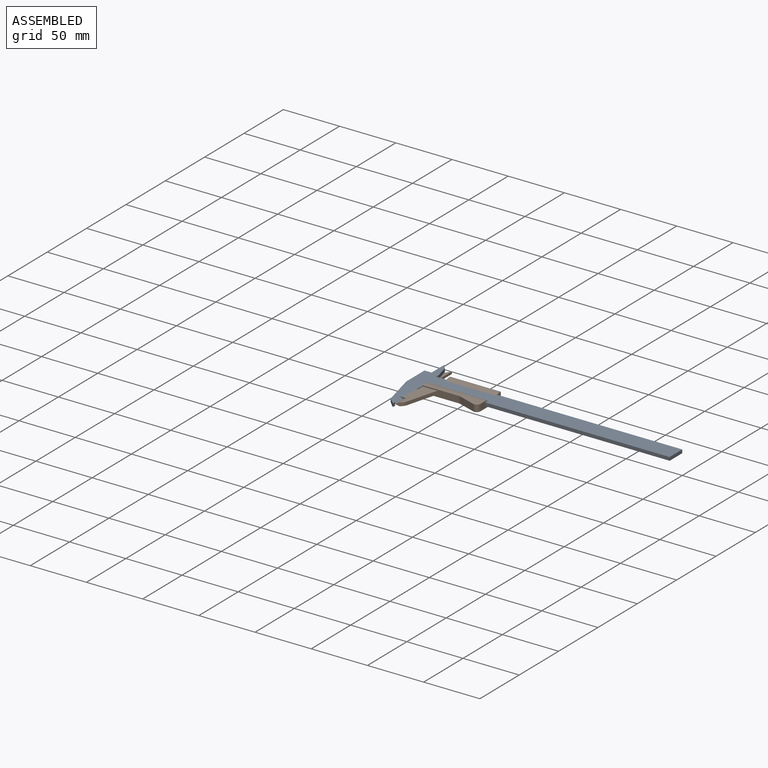
[diagram: assembled view]
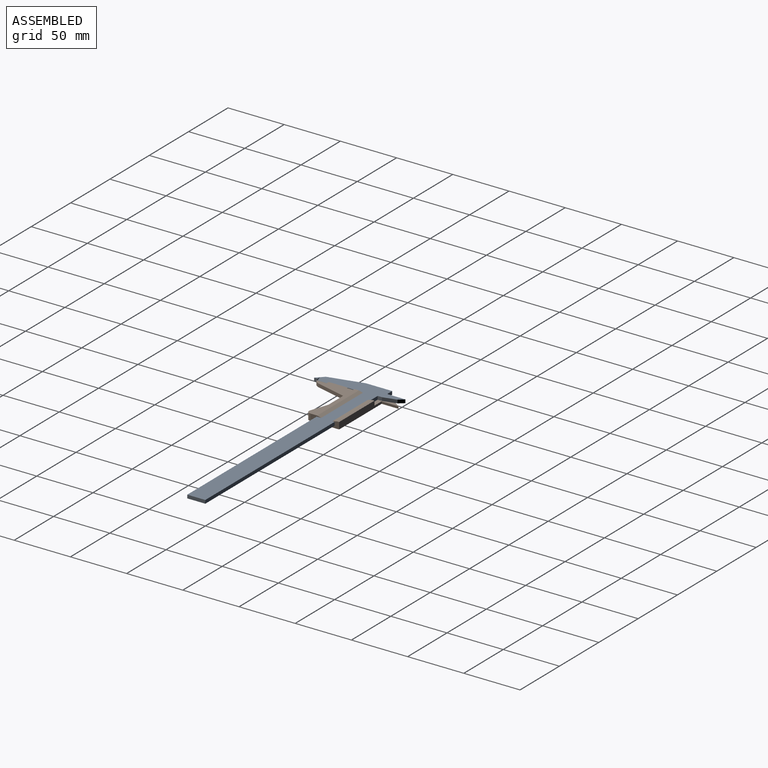
[diagram: assembled view, second angle]
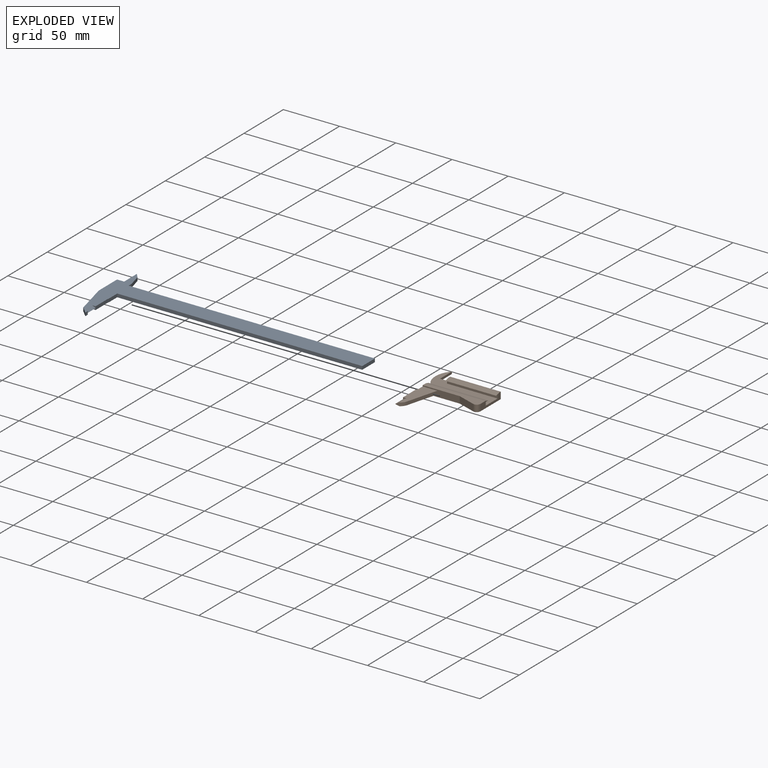
[diagram: exploded view]
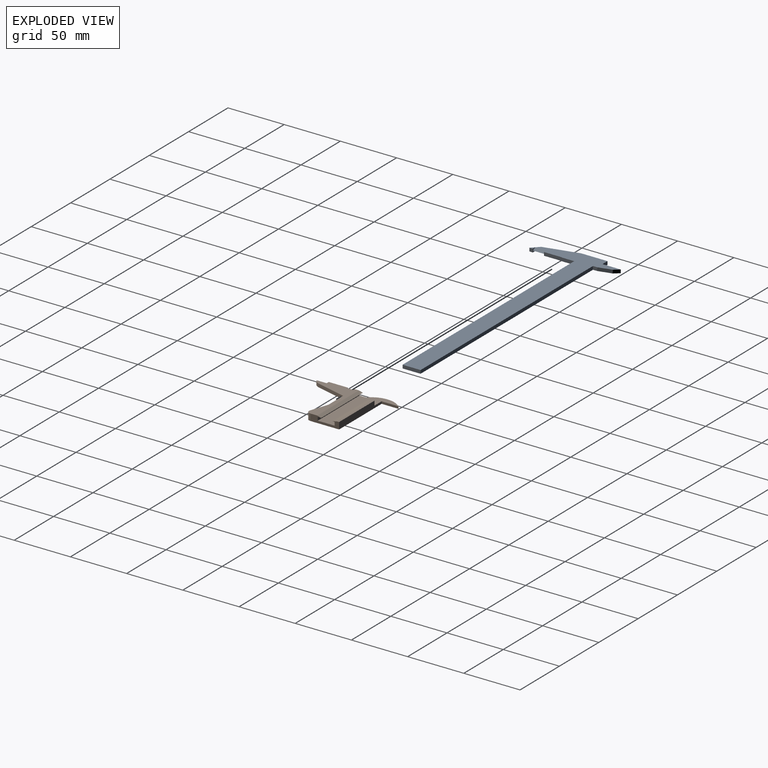
[diagram: exploded view, second angle]
ASSEMBLY  parts=2 mates=3
PART A: 25 faces, bbox 232x76x3 mm
  f0: plane 16x3mm, normal (1,0,0), area 48mm2, adj f1,f6,f18,f19,f20
  f1: plane 232x73mm, normal (0,0,1), area 4167.7mm2, adj f0,f3,f4,f6,f7,f8,f9,f10
  f2: plane 3x3mm, normal (0,0,-1), area 4.5mm2, adj f4,f5,f21
  f3: plane 30.3x7.5mm, normal (-0.97,-0.24,0), area 93.6mm2, adj f1,f4,f16,f18
  f4: plane 6.2x6.2mm, normal (-0.71,-0.71,0), area 26.3mm2, adj f1,f2,f3,f5,f17,f18
  f5: plane 3x3mm, normal (1,0,0), area 9mm2, adj f2,f4,f17,f21,f22
  f6: plane 3x0.3mm, normal (0,-1,0), area 0.9mm2, adj f0,f1,f7,f18
  f7: plane 11x3mm, normal (1,0,0), area 33mm2, adj f1,f6,f8,f18
  f8: plane 218x3mm, normal (0,-1,0), area 654mm2, adj f1,f7,f9,f18
  f9: plane 16x3mm, normal (1,0,0), area 48mm2, adj f1,f8,f10,f18
  f10: plane 219x3mm, normal (0,1,0), area 657mm2, adj f1,f9,f11,f18
  f11: plane 3.8x3mm, normal (1,0,0), area 11.4mm2, adj f1,f10,f12,f18
  f12: plane 11.7x3.04mm, normal (0.97,0.25,0), area 36.3mm2, adj f1,f11,f13,f18
  f13: plane 4.5x3.66mm, normal (0.78,0.63,0), area 17.4mm2, adj f1,f12,f14,f18
  f14: plane 16.2x3mm, normal (-1,0,0), area 48.6mm2, adj f1,f13,f15,f18
  f15: plane 6.3x3mm, normal (0,1,0), area 18.9mm2, adj f1,f14,f16,f18
  f16: plane 23.3x3mm, normal (-1,0,0), area 69.9mm2, adj f1,f3,f15,f18
  f17: plane 3x3mm, normal (0,0,1), area 4.5mm2, adj f4,f5,f22
  f18: plane 232x73mm, normal (0,0,-1), area 4167.7mm2, adj f0,f3,f4,f6,f7,f8,f9,f10
  f19: plane 3x1.5mm, normal (0,-1,0), area 2.3mm2, adj f0,f18,f23
  f20: plane 3x1.5mm, normal (0,-1,0), area 2.3mm2, adj f0,f1,f24
  f21: plane 3x1.5mm, normal (0,1,0), area 2.3mm2, adj f2,f5,f23
  f22: plane 3x1.5mm, normal (0,1,0), area 2.3mm2, adj f5,f17,f24
  f23: plane 10x3mm, normal (0.45,0,-0.89), area 33.5mm2, adj f18,f19,f21,f24
  f24: plane 10x3mm, normal (0.45,0,0.89), area 33.5mm2, adj f1,f20,f22,f23
PART B: 30 faces, bbox 72x59.2x6 mm
  f0: plane 45x3mm, normal (1,0,0), area 135mm2, adj f1,f10,f16,f26
  f1: plane 45x2mm, normal (0,0,-1), area 90mm2, adj f0,f2,f16,f26
  f2: plane 45x4mm, normal (0.24,0,0.97), area 185.5mm2, adj f1,f11,f16,f26
  f3: plane 17x6mm, normal (0,-1,0), area 59.7mm2, adj f5,f6,f7,f8,f9,f10,f13,f14
  f4: plane 17x3mm, normal (0,-1,0), area 51mm2, adj f5,f6,f17,f20,f23
  f5: plane 32.43x14mm, normal (0,0,1), area 276.6mm2, adj f3,f4,f7,f17,f18,f19,f21,f23
  f6: plane 32.43x14mm, normal (0,0,-1), area 276.6mm2, adj f3,f4,f7,f17,f18,f19,f20,f22
  f7: plane 33x6mm, normal (1,0,0), area 159mm2, adj f3,f5,f6,f13,f14,f19,f28
  f8: plane 53x3mm, normal (0,0,-1), area 159mm2, adj f3,f9,f15,f16
  f9: plane 53x3mm, normal (-1,0,0), area 159mm2, adj f3,f8,f10,f16
  f10: plane 59.24x34mm, normal (0,0,1), area 936.4mm2, adj f0,f3,f9,f12,f16,f24,f25,f26
  f11: plane 45x2mm, normal (0,0,1), area 90mm2, adj f2,f12,f16,f26
  f12: plane 54x6mm, normal (-1,0,0), area 288mm2, adj f10,f11,f13,f16,f25,f26
  f13: plane 59.24x44.04mm, normal (0,0,-1), area 1418mm2, adj f3,f7,f12,f16,f24,f25,f27,f28
  f14: plane 53x9.54mm, normal (0,0,1), area 275.1mm2, adj f3,f7,f15,f16,f27,f28,f29
  f15: plane 53x3.5mm, normal (-0.27,0,0.96), area 192.9mm2, adj f3,f8,f14,f16
  f16: plane 25.5x6mm, normal (0,1,0), area 94.2mm2, adj f0,f1,f2,f8,f9,f10,f11,f12
  f17: plane 3x1mm, normal (-1,0,0), area 3mm2, adj f3,f4,f5,f6
  f18: cylinder r=8mm len=6.59mm, axis (0,0,-1), area 23.3mm2, adj f5,f6,f19,f21,f22
  f19: plane 27.65x7.41mm, normal (0.26,0.97,0), area 85.9mm2, adj f5,f6,f7,f18
  f20: plane 3x1.5mm, normal (1,0,0), area 2.2mm2, adj f4,f6,f22
  f21: plane 10x3mm, normal (0,-0.45,0.89), area 32.1mm2, adj f5,f18,f22,f23
  f22: plane 10x3mm, normal (0,-0.45,-0.89), area 32.1mm2, adj f6,f18,f20,f21
  f23: plane 3x1.5mm, normal (1,0,0), area 2.2mm2, adj f4,f5,f21
  f24: cylinder r=20mm len=28mm, axis (0,0,-1), area 62.1mm2, adj f3,f10,f13,f25
  f25: plane 15x2mm, normal (0,1,0), area 30mm2, adj f10,f12,f13,f24
  f26: plane 6x4mm, normal (0,-1,0), area 16mm2, adj f0,f1,f2,f10,f11,f12
  f27: plane 6x1.06mm, normal (0.17,0.98,0), area 6.5mm2, adj f13,f14,f16,f29
  f28: plane 15.9x6mm, normal (0.95,-0.32,0), area 100.7mm2, adj f7,f13,f14,f29
  f29: cylinder r=3mm len=6mm, axis (0,0,1), area 31mm2, adj f13,f14,f27,f28
PLACE A at identity fixed
PLACE B rot(axis=(0,0,-1),90deg) t=(-164.3,-15,0)mm
MATE planar B.f10 <-> A.f18  axis (0,0,1) through (-195,-5.76,0)mm
MATE planar A.f10 <-> B.f0  axis (0,1,0) through (-109.5,0,1.5)mm
MATE planar A.f5 <-> B.f4  axis (1,0,0) through (-218.3,-54.5,1.5)mm
